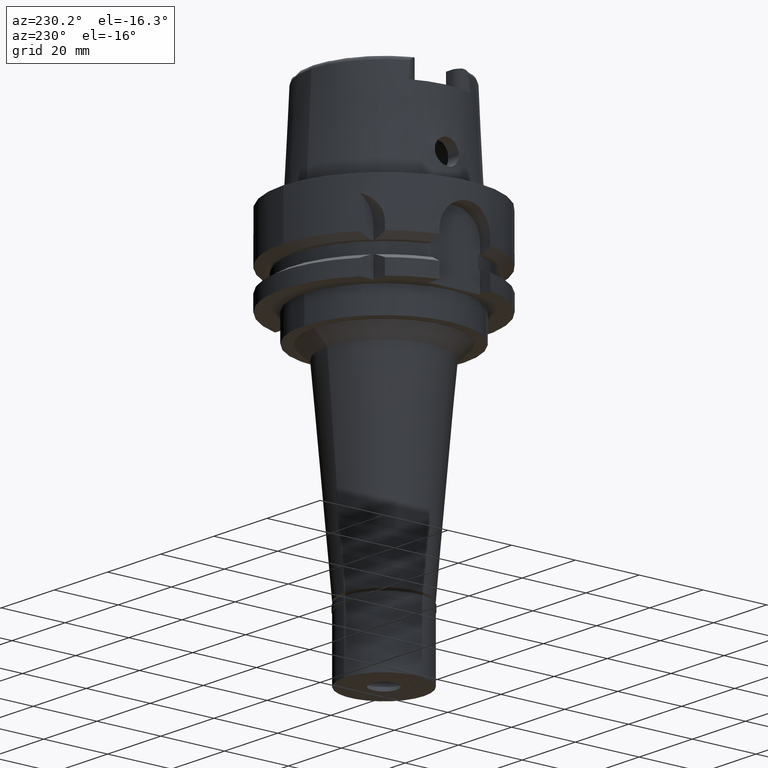
[diagram: clean part render]
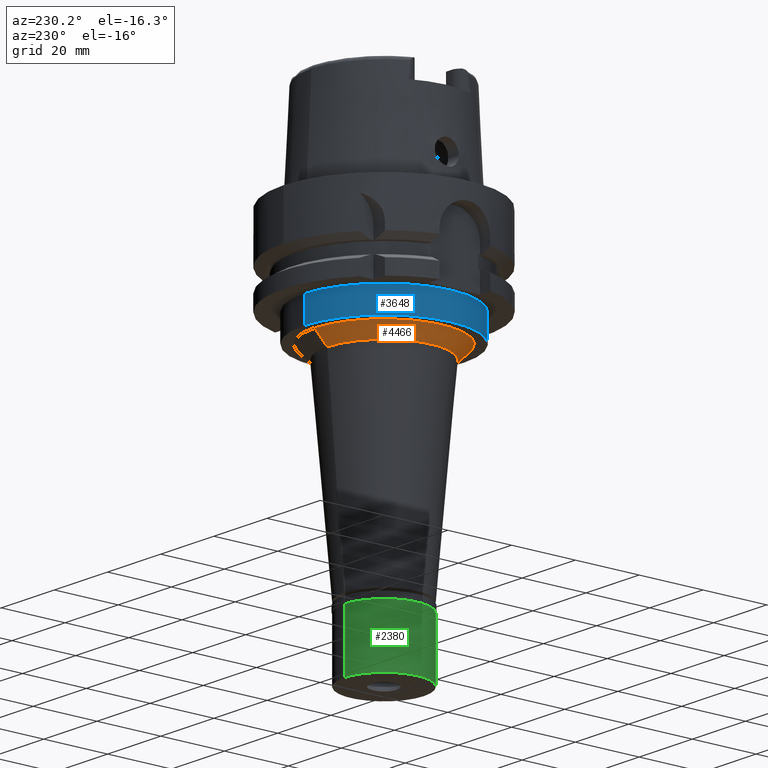
[diagram: same view with three faces highlighted in distinct colors, each labeled with its STEP entity id]
A machine part, auxiliary view with three faces highlighted in distinct colors.
Their STEP definitions:

[orange] entity #4466 — the highlighted conical surface has half-angle 45 deg.
#309 = AXIS2_PLACEMENT_3D ( 'NONE', #3622, #4410, #1915 ) ;
#323 = AXIS2_PLACEMENT_3D ( 'NONE', #2618, #480, #2998 ) ;
#355 = CARTESIAN_POINT ( 'NONE',  ( 0.0000000000000000000, 0.0000000000000000000, -34.00000000000000000 ) ) ;
#370 = LINE ( 'NONE', #2449, #4186 ) ;
#480 = DIRECTION ( 'NONE',  ( 0.0000000000000000000, 0.0000000000000000000, 1.000000000000000000 ) ) ;
#620 = CARTESIAN_POINT ( 'NONE',  ( 0.0000000000000000000, 21.81056187601999952, -34.00000000000000000 ) ) ;
#691 = CIRCLE ( 'NONE', #5179, 21.81056187601999952 ) ;
#762 = CIRCLE ( 'NONE', #309, 17.81056187602000307 ) ;
#780 = DIRECTION ( 'NONE',  ( 0.0000000000000000000, 0.0000000000000000000, -1.000000000000000000 ) ) ;
#872 = VERTEX_POINT ( 'NONE', #1135 ) ;
#928 = EDGE_CURVE ( 'NONE', #2092, #4809, #691, .T. ) ;
#1135 = CARTESIAN_POINT ( 'NONE',  ( 0.0000000000000000000, 17.81056187602000307, -38.00000000000000000 ) ) ;
#1776 = CARTESIAN_POINT ( 'NONE',  ( 0.0000000000000000000, -17.81056187602000307, -38.00000000000000000 ) ) ;
#1915 = DIRECTION ( 'NONE',  ( 0.0000000000000000000, -1.000000000000000000, 0.0000000000000000000 ) ) ;
#1928 = EDGE_CURVE ( 'NONE', #3666, #872, #762, .T. ) ;
#2092 = VERTEX_POINT ( 'NONE', #3733 ) ;
#2148 = EDGE_LOOP ( 'NONE', ( #2743, #4447, #4097, #5299 ) ) ;
#2190 = EDGE_CURVE ( 'NONE', #2092, #3666, #370, .T. ) ;
#2449 = CARTESIAN_POINT ( 'NONE',  ( 0.0000000000000000000, -21.81056187601999952, -34.00000000000000000 ) ) ;
#2533 = DIRECTION ( 'NONE',  ( 0.0000000000000000000, 0.7071067811864980568, -0.7071067811865969777 ) ) ;
#2618 = CARTESIAN_POINT ( 'NONE',  ( 0.0000000000000000000, 0.0000000000000000000, -36.00000000000000000 ) ) ;
#2743 = ORIENTED_EDGE ( 'NONE', *, *, #1928, .F. ) ;
#2751 = CARTESIAN_POINT ( 'NONE',  ( 0.0000000000000000000, 21.81056187601999952, -34.00000000000000000 ) ) ;
#2777 = VECTOR ( 'NONE', #4011, 1000.000000000000000 ) ;
#2998 = DIRECTION ( 'NONE',  ( 0.0000000000000000000, 1.000000000000000000, 0.0000000000000000000 ) ) ;
#3622 = CARTESIAN_POINT ( 'NONE',  ( 0.0000000000000000000, 0.0000000000000000000, -38.00000000000000000 ) ) ;
#3666 = VERTEX_POINT ( 'NONE', #1776 ) ;
#3733 = CARTESIAN_POINT ( 'NONE',  ( 0.0000000000000000000, -21.81056187601999952, -34.00000000000000000 ) ) ;
#4011 = DIRECTION ( 'NONE',  ( 0.0000000000000000000, -0.7071067811864980568, -0.7071067811865969777 ) ) ;
#4097 = ORIENTED_EDGE ( 'NONE', *, *, #928, .T. ) ;
#4186 = VECTOR ( 'NONE', #2533, 1000.000000000000000 ) ;
#4300 = EDGE_CURVE ( 'NONE', #4809, #872, #5225, .T. ) ;
#4410 = DIRECTION ( 'NONE',  ( 0.0000000000000000000, 0.0000000000000000000, -1.000000000000000000 ) ) ;
#4443 = DIRECTION ( 'NONE',  ( 0.0000000000000000000, -1.000000000000000000, 0.0000000000000000000 ) ) ;
#4447 = ORIENTED_EDGE ( 'NONE', *, *, #2190, .F. ) ;
#4466 = ADVANCED_FACE ( 'NONE', ( #4594 ), #4908, .T. ) ;
#4594 = FACE_OUTER_BOUND ( 'NONE', #2148, .T. ) ;
#4809 = VERTEX_POINT ( 'NONE', #620 ) ;
#4908 = CONICAL_SURFACE ( 'NONE', #323, 19.81056187601999952, 0.7853981633972997312 ) ;
#5179 = AXIS2_PLACEMENT_3D ( 'NONE', #355, #780, #4443 ) ;
#5225 = LINE ( 'NONE', #2751, #2777 ) ;
#5299 = ORIENTED_EDGE ( 'NONE', *, *, #4300, .T. ) ;

[blue] entity #3648 — the highlighted cylindrical surface (partial cylindrical patch) has radius 25 mm, axis along (0, 0, 1).
#101 = VERTEX_POINT ( 'NONE', #5163 ) ;
#247 = ORIENTED_EDGE ( 'NONE', *, *, #3855, .T. ) ;
#266 = CARTESIAN_POINT ( 'NONE',  ( 0.0000000000000000000, 0.0000000000000000000, -34.00000000000000000 ) ) ;
#380 = CARTESIAN_POINT ( 'NONE',  ( 0.0000000000000000000, 25.00000000000000000, -34.00000000000000000 ) ) ;
#383 = VECTOR ( 'NONE', #1130, 1000.000000000000000 ) ;
#487 = FACE_OUTER_BOUND ( 'NONE', #652, .T. ) ;
#652 = EDGE_LOOP ( 'NONE', ( #5180, #3206, #247, #1782 ) ) ;
#901 = CYLINDRICAL_SURFACE ( 'NONE', #3974, 25.00000000000000000 ) ;
#991 = EDGE_CURVE ( 'NONE', #3006, #4897, #2867, .T. ) ;
#1130 = DIRECTION ( 'NONE',  ( 0.0000000000000000000, 0.0000000000000000000, -1.000000000000000000 ) ) ;
#1178 = CARTESIAN_POINT ( 'NONE',  ( 0.0000000000000000000, -25.00000000000000000, -26.00000000000000000 ) ) ;
#1637 = CIRCLE ( 'NONE', #2773, 25.00000000000000000 ) ;
#1782 = ORIENTED_EDGE ( 'NONE', *, *, #5338, .T. ) ;
#2138 = DIRECTION ( 'NONE',  ( 0.0000000000000000000, 0.0000000000000000000, -1.000000000000000000 ) ) ;
#2158 = DIRECTION ( 'NONE',  ( 0.0000000000000000000, 1.000000000000000000, 0.0000000000000000000 ) ) ;
#2289 = DIRECTION ( 'NONE',  ( 0.0000000000000000000, 0.0000000000000000000, -1.000000000000000000 ) ) ;
#2320 = CARTESIAN_POINT ( 'NONE',  ( 0.0000000000000000000, -25.00000000000000000, -26.00000000000000000 ) ) ;
#2433 = DIRECTION ( 'NONE',  ( 0.0000000000000000000, 0.0000000000000000000, 1.000000000000000000 ) ) ;
#2542 = LINE ( 'NONE', #3347, #2943 ) ;
#2773 = AXIS2_PLACEMENT_3D ( 'NONE', #5288, #2289, #3172 ) ;
#2784 = AXIS2_PLACEMENT_3D ( 'NONE', #266, #2433, #5324 ) ;
#2806 = CARTESIAN_POINT ( 'NONE',  ( 0.0000000000000000000, -25.00000000000000000, -34.00000000000000000 ) ) ;
#2867 = CIRCLE ( 'NONE', #2784, 25.00000000000000000 ) ;
#2943 = VECTOR ( 'NONE', #2138, 1000.000000000000000 ) ;
#3006 = VERTEX_POINT ( 'NONE', #380 ) ;
#3172 = DIRECTION ( 'NONE',  ( 0.0000000000000000000, -1.000000000000000000, 0.0000000000000000000 ) ) ;
#3206 = ORIENTED_EDGE ( 'NONE', *, *, #3435, .F. ) ;
#3347 = CARTESIAN_POINT ( 'NONE',  ( 0.0000000000000000000, 25.00000000000000000, -26.00000000000000000 ) ) ;
#3426 = DIRECTION ( 'NONE',  ( 0.0000000000000000000, 0.0000000000000000000, 1.000000000000000000 ) ) ;
#3435 = EDGE_CURVE ( 'NONE', #4038, #4897, #4911, .T. ) ;
#3648 = ADVANCED_FACE ( 'NONE', ( #487 ), #901, .T. ) ;
#3855 = EDGE_CURVE ( 'NONE', #4038, #101, #1637, .T. ) ;
#3974 = AXIS2_PLACEMENT_3D ( 'NONE', #4270, #3426, #2158 ) ;
#4038 = VERTEX_POINT ( 'NONE', #1178 ) ;
#4270 = CARTESIAN_POINT ( 'NONE',  ( 0.0000000000000000000, 0.0000000000000000000, 0.0000000000000000000 ) ) ;
#4897 = VERTEX_POINT ( 'NONE', #2806 ) ;
#4911 = LINE ( 'NONE', #2320, #383 ) ;
#5163 = CARTESIAN_POINT ( 'NONE',  ( 0.0000000000000000000, 25.00000000000000000, -26.00000000000000000 ) ) ;
#5180 = ORIENTED_EDGE ( 'NONE', *, *, #991, .T. ) ;
#5288 = CARTESIAN_POINT ( 'NONE',  ( 0.0000000000000000000, 0.0000000000000000000, -26.00000000000000000 ) ) ;
#5324 = DIRECTION ( 'NONE',  ( 0.0000000000000000000, 1.000000000000000000, 0.0000000000000000000 ) ) ;
#5338 = EDGE_CURVE ( 'NONE', #101, #3006, #2542, .T. ) ;

[green] entity #2380 — the highlighted cylindrical surface (partial cylindrical patch) has radius 12.5 mm, axis along (0, 0, -1).
#86 = CARTESIAN_POINT ( 'NONE',  ( 0.0000000000000000000, 0.0000000000000000000, -2.000000000000000000 ) ) ;
#175 = CARTESIAN_POINT ( 'NONE',  ( 0.0000000000000000000, 12.50000000000000000, -20.50000000000000000 ) ) ;
#211 = AXIS2_PLACEMENT_3D ( 'NONE', #5005, #3723, #3612 ) ;
#251 = CYLINDRICAL_SURFACE ( 'NONE', #211, 12.50000000000000000 ) ;
#364 = CARTESIAN_POINT ( 'NONE',  ( 0.0000000000000000000, 12.50000000000000000, -2.000000000000000000 ) ) ;
#449 = DIRECTION ( 'NONE',  ( 0.0000000000000000000, 1.000000000000000000, 0.0000000000000000000 ) ) ;
#471 = CIRCLE ( 'NONE', #2657, 12.50000000000000000 ) ;
#479 = EDGE_CURVE ( 'NONE', #3421, #4921, #471, .T. ) ;
#488 = ORIENTED_EDGE ( 'NONE', *, *, #5008, .T. ) ;
#795 = DIRECTION ( 'NONE',  ( 0.0000000000000000000, -1.000000000000000000, 0.0000000000000000000 ) ) ;
#1256 = VECTOR ( 'NONE', #2474, 1000.000000000000000 ) ;
#1275 = CARTESIAN_POINT ( 'NONE',  ( 0.0000000000000000000, -12.50000000000000000, -20.50000000000000000 ) ) ;
#1668 = CARTESIAN_POINT ( 'NONE',  ( 0.0000000000000000000, -12.50000000000000000, -2.000000000000000000 ) ) ;
#1767 = VERTEX_POINT ( 'NONE', #175 ) ;
#1831 = EDGE_LOOP ( 'NONE', ( #488, #5266, #3864, #3615 ) ) ;
#1869 = LINE ( 'NONE', #2691, #5223 ) ;
#2154 = CIRCLE ( 'NONE', #4108, 12.50000000000000000 ) ;
#2178 = DIRECTION ( 'NONE',  ( 0.0000000000000000000, 0.0000000000000000000, -1.000000000000000000 ) ) ;
#2183 = EDGE_CURVE ( 'NONE', #3421, #2562, #5373, .T. ) ;
#2380 = ADVANCED_FACE ( 'NONE', ( #4146 ), #251, .T. ) ;
#2474 = DIRECTION ( 'NONE',  ( 0.0000000000000000000, 0.0000000000000000000, -1.000000000000000000 ) ) ;
#2494 = DIRECTION ( 'NONE',  ( 0.0000000000000000000, 0.0000000000000000000, 1.000000000000000000 ) ) ;
#2562 = VERTEX_POINT ( 'NONE', #1275 ) ;
#2657 = AXIS2_PLACEMENT_3D ( 'NONE', #86, #2178, #795 ) ;
#2691 = CARTESIAN_POINT ( 'NONE',  ( 0.0000000000000000000, 12.50000000000000000, -2.000000000000000000 ) ) ;
#2764 = EDGE_CURVE ( 'NONE', #4921, #1767, #1869, .T. ) ;
#3421 = VERTEX_POINT ( 'NONE', #3988 ) ;
#3612 = DIRECTION ( 'NONE',  ( 0.0000000000000000000, -1.000000000000000000, 0.0000000000000000000 ) ) ;
#3615 = ORIENTED_EDGE ( 'NONE', *, *, #2764, .T. ) ;
#3723 = DIRECTION ( 'NONE',  ( 0.0000000000000000000, 0.0000000000000000000, -1.000000000000000000 ) ) ;
#3864 = ORIENTED_EDGE ( 'NONE', *, *, #479, .T. ) ;
#3988 = CARTESIAN_POINT ( 'NONE',  ( 0.0000000000000000000, -12.50000000000000000, -2.000000000000000000 ) ) ;
#4108 = AXIS2_PLACEMENT_3D ( 'NONE', #4616, #2494, #449 ) ;
#4146 = FACE_OUTER_BOUND ( 'NONE', #1831, .T. ) ;
#4392 = DIRECTION ( 'NONE',  ( 0.0000000000000000000, 0.0000000000000000000, -1.000000000000000000 ) ) ;
#4616 = CARTESIAN_POINT ( 'NONE',  ( 0.0000000000000000000, 0.0000000000000000000, -20.50000000000000000 ) ) ;
#4921 = VERTEX_POINT ( 'NONE', #364 ) ;
#5005 = CARTESIAN_POINT ( 'NONE',  ( 0.0000000000000000000, 0.0000000000000000000, 0.0000000000000000000 ) ) ;
#5008 = EDGE_CURVE ( 'NONE', #1767, #2562, #2154, .T. ) ;
#5223 = VECTOR ( 'NONE', #4392, 1000.000000000000000 ) ;
#5266 = ORIENTED_EDGE ( 'NONE', *, *, #2183, .F. ) ;
#5373 = LINE ( 'NONE', #1668, #1256 ) ;